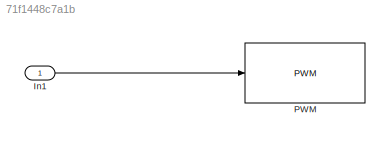
MODEL slx_71f1448c7a1b
KIND model
BLOCK [Inport] In1
  IconDisplay = Port number
BLOCK [Reference] PWM  REF=arduinolib/PWM
  Ports = [1]
  SourceBlock = arduinolib/PWM
  SourceType = Arduino PWM
  pinNumber = 9
LINE In1:1 -> PWM:1
